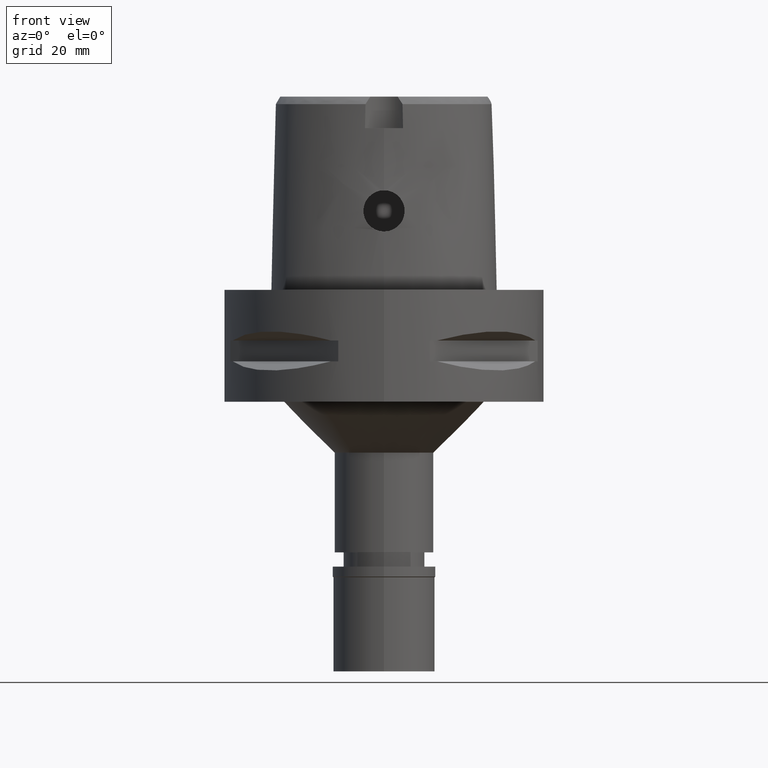
[diagram: clean part render]
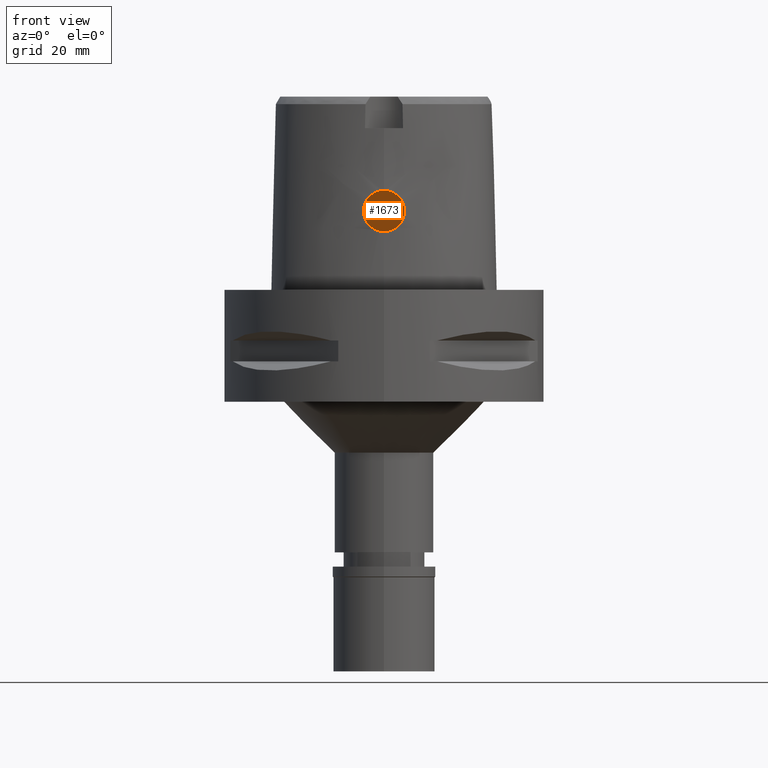
[diagram: same view with one face highlighted and labeled with its STEP entity id]
A machine part, front view. The second image highlights one B-rep face of the part: STEP entity #1673.
In plain terms, the highlighted planar face has unit normal (0, 1, 0).
Its self-contained STEP definition (entity closure, byte-faithful):
#392 = DIRECTION ( 'NONE',  ( -0.0000000000000000000, 1.000000000000000000, 0.0000000000000000000 ) ) ;
#607 = DIRECTION ( 'NONE',  ( 0.0000000000000000000, 0.0000000000000000000, 1.000000000000000000 ) ) ;
#745 = CARTESIAN_POINT ( 'NONE',  ( 0.0000000000000000000, 17.50000000000000000, 11.44999999999999929 ) ) ;
#775 = FACE_OUTER_BOUND ( 'NONE', #901, .T. ) ;
#901 = EDGE_LOOP ( 'NONE', ( #1751, #3155 ) ) ;
#1307 = AXIS2_PLACEMENT_3D ( 'NONE', #3737, #392, #2268 ) ;
#1673 = ADVANCED_FACE ( 'NONE', ( #775 ), #2242, .F. ) ;
#1697 = CARTESIAN_POINT ( 'NONE',  ( 0.0000000000000000000, 17.50000000000000000, 15.50000000000000000 ) ) ;
#1751 = ORIENTED_EDGE ( 'NONE', *, *, #3675, .F. ) ;
#1904 = CIRCLE ( 'NONE', #3327, 4.049999999999999822 ) ;
#1984 = CIRCLE ( 'NONE', #2149, 4.049999999999998046 ) ;
#2119 = CARTESIAN_POINT ( 'NONE',  ( 0.0000000000000000000, 17.50000000000000000, 19.55000000000000071 ) ) ;
#2149 = AXIS2_PLACEMENT_3D ( 'NONE', #2918, #4195, #607 ) ;
#2242 = PLANE ( 'NONE',  #1307 ) ;
#2268 = DIRECTION ( 'NONE',  ( 1.000000000000000000, 0.0000000000000000000, 0.0000000000000000000 ) ) ;
#2363 = DIRECTION ( 'NONE',  ( 0.0000000000000000000, 1.000000000000000000, 0.0000000000000000000 ) ) ;
#2417 = VERTEX_POINT ( 'NONE', #745 ) ;
#2918 = CARTESIAN_POINT ( 'NONE',  ( 0.0000000000000000000, 17.50000000000000000, 15.50000000000000000 ) ) ;
#3094 = DIRECTION ( 'NONE',  ( 0.0000000000000000000, 0.0000000000000000000, -1.000000000000000000 ) ) ;
#3155 = ORIENTED_EDGE ( 'NONE', *, *, #4300, .F. ) ;
#3327 = AXIS2_PLACEMENT_3D ( 'NONE', #1697, #2363, #3094 ) ;
#3675 = EDGE_CURVE ( 'NONE', #4198, #2417, #1984, .T. ) ;
#3737 = CARTESIAN_POINT ( 'NONE',  ( 0.0000000000000000000, 17.50000000000000000, 0.0000000000000000000 ) ) ;
#4195 = DIRECTION ( 'NONE',  ( 0.0000000000000000000, 1.000000000000000000, 0.0000000000000000000 ) ) ;
#4198 = VERTEX_POINT ( 'NONE', #2119 ) ;
#4300 = EDGE_CURVE ( 'NONE', #2417, #4198, #1904, .T. ) ;